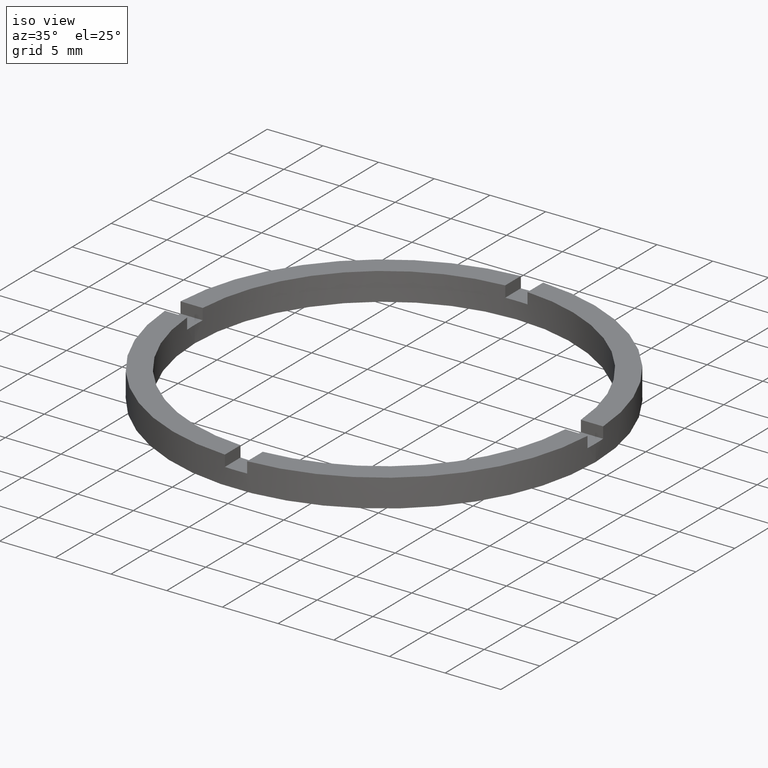
[diagram: clean part render]
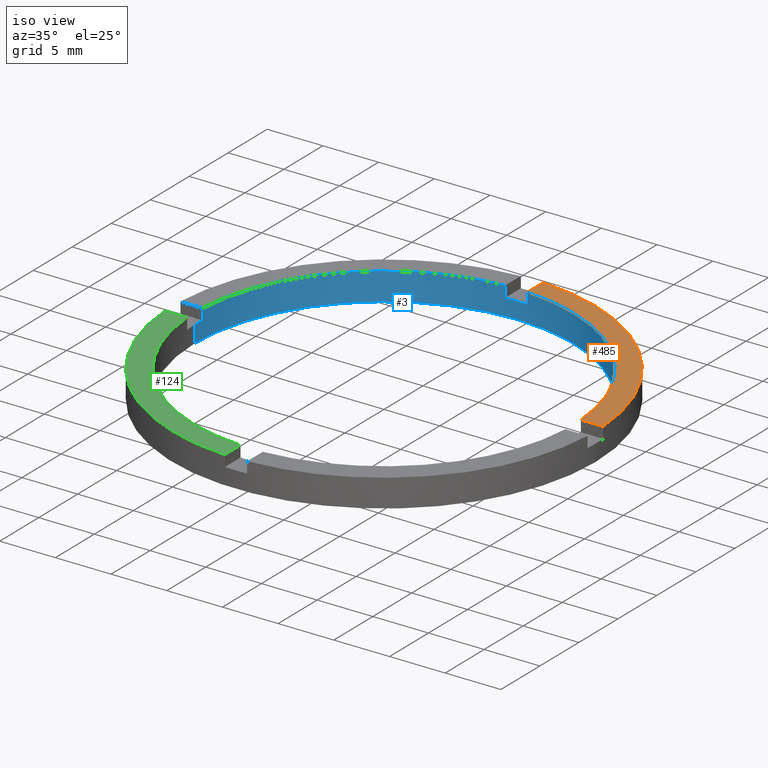
[diagram: same view with three faces highlighted in distinct colors, each labeled with its STEP entity id]
A machine part, iso view with three faces highlighted in distinct colors.
Their STEP definitions:

[orange] entity #485 — the highlighted planar face has unit normal (0, 0, 1).
#8 = CARTESIAN_POINT ( 'NONE',  ( 0.9999999999999742428, 18.97366596101027270, 2.500000000000000000 ) ) ;
#32 = AXIS2_PLACEMENT_3D ( 'NONE', #257, #660, #709 ) ;
#78 = EDGE_CURVE ( 'NONE', #535, #570, #640, .T. ) ;
#94 = EDGE_CURVE ( 'NONE', #462, #570, #99, .T. ) ;
#99 = CIRCLE ( 'NONE', #32, 19.00000000000000000 ) ;
#137 = EDGE_CURVE ( 'NONE', #298, #535, #620, .T. ) ;
#141 = DIRECTION ( 'NONE',  ( 0.000000000000000000, 1.000000000000000000, 0.000000000000000000 ) ) ;
#176 = PLANE ( 'NONE',  #703 ) ;
#197 = ORIENTED_EDGE ( 'NONE', *, *, #78, .F. ) ;
#245 = CARTESIAN_POINT ( 'NONE',  ( 16.97056274847714974, 0.9999999999998412381, 2.500000000000000000 ) ) ;
#257 = CARTESIAN_POINT ( 'NONE',  ( 0.000000000000000000, 0.000000000000000000, 2.500000000000000000 ) ) ;
#298 = VERTEX_POINT ( 'NONE', #245 ) ;
#343 = DIRECTION ( 'NONE',  ( 1.000000000000000000, 0.000000000000000000, -0.000000000000000000 ) ) ;
#368 = CARTESIAN_POINT ( 'NONE',  ( 0.000000000000000000, 0.000000000000000000, 2.500000000000000000 ) ) ;
#374 = EDGE_CURVE ( 'NONE', #462, #298, #382, .T. ) ;
#382 = LINE ( 'NONE', #650, #389 ) ;
#389 = VECTOR ( 'NONE', #661, 1000.000000000000000 ) ;
#421 = CARTESIAN_POINT ( 'NONE',  ( 0.000000000000000000, 0.000000000000000000, 2.500000000000000000 ) ) ;
#450 = ORIENTED_EDGE ( 'NONE', *, *, #374, .F. ) ;
#462 = VERTEX_POINT ( 'NONE', #734 ) ;
#480 = DIRECTION ( 'NONE',  ( 1.000000000000000000, 0.000000000000000000, 0.000000000000000000 ) ) ;
#485 = ADVANCED_FACE ( 'NONE', ( #602 ), #176, .T. ) ;
#495 = ORIENTED_EDGE ( 'NONE', *, *, #94, .T. ) ;
#496 = DIRECTION ( 'NONE',  ( 0.000000000000000000, 0.000000000000000000, 1.000000000000000000 ) ) ;
#508 = CARTESIAN_POINT ( 'NONE',  ( 0.9999999999999742428, 16.97056274847713908, 2.500000000000000000 ) ) ;
#516 = CARTESIAN_POINT ( 'NONE',  ( 0.9999999999999746869, 9.000000000000000000, 2.500000000000000000 ) ) ;
#535 = VERTEX_POINT ( 'NONE', #508 ) ;
#570 = VERTEX_POINT ( 'NONE', #8 ) ;
#602 = FACE_OUTER_BOUND ( 'NONE', #748, .T. ) ;
#603 = DIRECTION ( 'NONE',  ( 0.000000000000000000, 0.000000000000000000, 1.000000000000000000 ) ) ;
#620 = CIRCLE ( 'NONE', #762, 17.00000000000000000 ) ;
#623 = VECTOR ( 'NONE', #141, 1000.000000000000000 ) ;
#640 = LINE ( 'NONE', #516, #623 ) ;
#650 = CARTESIAN_POINT ( 'NONE',  ( 8.999999999999994671, 0.9999999999998411271, 2.500000000000000000 ) ) ;
#660 = DIRECTION ( 'NONE',  ( 0.000000000000000000, 0.000000000000000000, 1.000000000000000000 ) ) ;
#661 = DIRECTION ( 'NONE',  ( -1.000000000000000000, -4.336808689942017120E-17, -0.000000000000000000 ) ) ;
#703 = AXIS2_PLACEMENT_3D ( 'NONE', #368, #496, #343 ) ;
#709 = DIRECTION ( 'NONE',  ( 1.000000000000000000, 0.000000000000000000, 0.000000000000000000 ) ) ;
#734 = CARTESIAN_POINT ( 'NONE',  ( 18.97366596101028335, 0.9999999999998414602, 2.500000000000000000 ) ) ;
#748 = EDGE_LOOP ( 'NONE', ( #197, #755, #450, #495 ) ) ;
#755 = ORIENTED_EDGE ( 'NONE', *, *, #137, .F. ) ;
#762 = AXIS2_PLACEMENT_3D ( 'NONE', #421, #603, #480 ) ;

[blue] entity #3 — the highlighted cylindrical surface (partial cylindrical patch) has radius 17 mm, axis along (-0, -0, -1).
#3 = ADVANCED_FACE ( 'NONE', ( #130 ), #132, .F. ) ;
#4 = DIRECTION ( 'NONE',  ( -0.000000000000000000, -0.000000000000000000, -1.000000000000000000 ) ) ;
#6 = CARTESIAN_POINT ( 'NONE',  ( -1.000000000000024869, 16.97056274847713553, 1.500000000000000000 ) ) ;
#10 = CARTESIAN_POINT ( 'NONE',  ( -1.000000000000024869, 16.97056274847713553, 2.500000000000000000 ) ) ;
#20 = VERTEX_POINT ( 'NONE', #400 ) ;
#30 = VERTEX_POINT ( 'NONE', #10 ) ;
#39 = CARTESIAN_POINT ( 'NONE',  ( -16.97056274847714263, 0.9999999999999759082, 1.500000000000000000 ) ) ;
#40 = DIRECTION ( 'NONE',  ( 0.000000000000000000, 0.000000000000000000, 1.000000000000000000 ) ) ;
#63 = VECTOR ( 'NONE', #670, 1000.000000000000000 ) ;
#70 = CARTESIAN_POINT ( 'NONE',  ( -17.00000000000000000, 0.000000000000000000, 1.500000000000000000 ) ) ;
#81 = CIRCLE ( 'NONE', #457, 17.00000000000000000 ) ;
#85 = CARTESIAN_POINT ( 'NONE',  ( 17.00000000000000000, 2.081899558550500280E-15, 1.500000000000000000 ) ) ;
#104 = AXIS2_PLACEMENT_3D ( 'NONE', #378, #138, #188 ) ;
#116 = LINE ( 'NONE', #364, #631 ) ;
#130 = FACE_OUTER_BOUND ( 'NONE', #281, .T. ) ;
#132 = CYLINDRICAL_SURFACE ( 'NONE', #566, 17.00000000000000000 ) ;
#137 = EDGE_CURVE ( 'NONE', #298, #535, #620, .T. ) ;
#138 = DIRECTION ( 'NONE',  ( 0.000000000000000000, -0.000000000000000000, 1.000000000000000000 ) ) ;
#154 = DIRECTION ( 'NONE',  ( 1.000000000000000000, 0.000000000000000000, 0.000000000000000000 ) ) ;
#161 = CARTESIAN_POINT ( 'NONE',  ( 0.9999999999999746869, 16.97056274847714263, 2.500000000000000000 ) ) ;
#174 = VERTEX_POINT ( 'NONE', #6 ) ;
#188 = DIRECTION ( 'NONE',  ( 1.000000000000000000, 0.000000000000000000, 0.000000000000000000 ) ) ;
#192 = EDGE_CURVE ( 'NONE', #479, #449, #629, .T. ) ;
#200 = VERTEX_POINT ( 'NONE', #372 ) ;
#203 = EDGE_CURVE ( 'NONE', #530, #174, #639, .T. ) ;
#205 = DIRECTION ( 'NONE',  ( -0.000000000000000000, -0.000000000000000000, -1.000000000000000000 ) ) ;
#207 = ORIENTED_EDGE ( 'NONE', *, *, #505, .T. ) ;
#214 = ORIENTED_EDGE ( 'NONE', *, *, #733, .F. ) ;
#223 = CARTESIAN_POINT ( 'NONE',  ( 0.000000000000000000, 0.000000000000000000, 1.500000000000000000 ) ) ;
#245 = CARTESIAN_POINT ( 'NONE',  ( 16.97056274847714974, 0.9999999999998412381, 2.500000000000000000 ) ) ;
#255 = AXIS2_PLACEMENT_3D ( 'NONE', #347, #284, #767 ) ;
#258 = EDGE_CURVE ( 'NONE', #530, #535, #632, .T. ) ;
#264 = CIRCLE ( 'NONE', #469, 17.00000000000000000 ) ;
#275 = ORIENTED_EDGE ( 'NONE', *, *, #192, .T. ) ;
#276 = ORIENTED_EDGE ( 'NONE', *, *, #396, .T. ) ;
#280 = DIRECTION ( 'NONE',  ( 1.000000000000000000, 0.000000000000000000, 0.000000000000000000 ) ) ;
#281 = EDGE_LOOP ( 'NONE', ( #214, #276, #571, #659, #458, #741, #300, #562, #657, #207, #275, #310 ) ) ;
#283 = DIRECTION ( 'NONE',  ( 0.000000000000000000, 0.000000000000000000, 1.000000000000000000 ) ) ;
#284 = DIRECTION ( 'NONE',  ( 0.000000000000000000, 0.000000000000000000, 1.000000000000000000 ) ) ;
#293 = CIRCLE ( 'NONE', #656, 17.00000000000000000 ) ;
#298 = VERTEX_POINT ( 'NONE', #245 ) ;
#300 = ORIENTED_EDGE ( 'NONE', *, *, #349, .F. ) ;
#310 = ORIENTED_EDGE ( 'NONE', *, *, #503, .F. ) ;
#312 = CIRCLE ( 'NONE', #255, 17.00000000000000000 ) ;
#322 = EDGE_CURVE ( 'NONE', #298, #742, #116, .T. ) ;
#323 = LINE ( 'NONE', #425, #63 ) ;
#330 = VECTOR ( 'NONE', #714, 1000.000000000000000 ) ;
#347 = CARTESIAN_POINT ( 'NONE',  ( 0.000000000000000000, 0.000000000000000000, 2.500000000000000000 ) ) ;
#349 = EDGE_CURVE ( 'NONE', #30, #174, #371, .T. ) ;
#351 = CARTESIAN_POINT ( 'NONE',  ( 16.97056274847714974, 0.9999999999998412381, 1.500000000000000000 ) ) ;
#360 = VECTOR ( 'NONE', #4, 1000.000000000000000 ) ;
#364 = CARTESIAN_POINT ( 'NONE',  ( 16.97056274847714974, 0.9999999999998412381, 2.500000000000000000 ) ) ;
#371 = LINE ( 'NONE', #673, #376 ) ;
#372 = CARTESIAN_POINT ( 'NONE',  ( -16.97056274847714263, 0.9999999999999759082, 2.500000000000000000 ) ) ;
#376 = VECTOR ( 'NONE', #729, 1000.000000000000000 ) ;
#378 = CARTESIAN_POINT ( 'NONE',  ( 0.000000000000000000, 0.000000000000000000, 1.500000000000000000 ) ) ;
#393 = DIRECTION ( 'NONE',  ( -1.000000000000000000, 0.000000000000000000, 0.000000000000000000 ) ) ;
#394 = VERTEX_POINT ( 'NONE', #39 ) ;
#396 = EDGE_CURVE ( 'NONE', #539, #742, #81, .T. ) ;
#400 = CARTESIAN_POINT ( 'NONE',  ( 17.00000000000000000, 2.081899558550500280E-15, 0.000000000000000000 ) ) ;
#419 = CARTESIAN_POINT ( 'NONE',  ( -16.97056274847714263, 0.9999999999999759082, 2.500000000000000000 ) ) ;
#421 = CARTESIAN_POINT ( 'NONE',  ( 0.000000000000000000, 0.000000000000000000, 2.500000000000000000 ) ) ;
#425 = CARTESIAN_POINT ( 'NONE',  ( 17.00000000000000000, 2.081899558550500280E-15, 2.500000000000000000 ) ) ;
#437 = CARTESIAN_POINT ( 'NONE',  ( 0.000000000000000000, 0.000000000000000000, 2.500000000000000000 ) ) ;
#449 = VERTEX_POINT ( 'NONE', #472 ) ;
#451 = DIRECTION ( 'NONE',  ( 1.000000000000000000, 0.000000000000000000, 0.000000000000000000 ) ) ;
#457 = AXIS2_PLACEMENT_3D ( 'NONE', #223, #718, #280 ) ;
#458 = ORIENTED_EDGE ( 'NONE', *, *, #258, .F. ) ;
#460 = CARTESIAN_POINT ( 'NONE',  ( 0.000000000000000000, 0.000000000000000000, 0.000000000000000000 ) ) ;
#469 = AXIS2_PLACEMENT_3D ( 'NONE', #641, #700, #154 ) ;
#472 = CARTESIAN_POINT ( 'NONE',  ( -17.00000000000000000, 0.000000000000000000, 0.000000000000000000 ) ) ;
#479 = VERTEX_POINT ( 'NONE', #70 ) ;
#480 = DIRECTION ( 'NONE',  ( 1.000000000000000000, 0.000000000000000000, 0.000000000000000000 ) ) ;
#503 = EDGE_CURVE ( 'NONE', #20, #449, #293, .T. ) ;
#505 = EDGE_CURVE ( 'NONE', #394, #479, #264, .T. ) ;
#508 = CARTESIAN_POINT ( 'NONE',  ( 0.9999999999999742428, 16.97056274847713908, 2.500000000000000000 ) ) ;
#530 = VERTEX_POINT ( 'NONE', #616 ) ;
#535 = VERTEX_POINT ( 'NONE', #508 ) ;
#536 = DIRECTION ( 'NONE',  ( -0.000000000000000000, -0.000000000000000000, -1.000000000000000000 ) ) ;
#539 = VERTEX_POINT ( 'NONE', #85 ) ;
#562 = ORIENTED_EDGE ( 'NONE', *, *, #775, .T. ) ;
#566 = AXIS2_PLACEMENT_3D ( 'NONE', #437, #205, #393 ) ;
#571 = ORIENTED_EDGE ( 'NONE', *, *, #322, .F. ) ;
#584 = LINE ( 'NONE', #419, #330 ) ;
#603 = DIRECTION ( 'NONE',  ( 0.000000000000000000, 0.000000000000000000, 1.000000000000000000 ) ) ;
#609 = CARTESIAN_POINT ( 'NONE',  ( -17.00000000000000000, 0.000000000000000000, 2.500000000000000000 ) ) ;
#616 = CARTESIAN_POINT ( 'NONE',  ( 0.9999999999999742428, 16.97056274847713908, 1.500000000000000000 ) ) ;
#620 = CIRCLE ( 'NONE', #762, 17.00000000000000000 ) ;
#627 = VECTOR ( 'NONE', #283, 1000.000000000000000 ) ;
#629 = LINE ( 'NONE', #609, #360 ) ;
#631 = VECTOR ( 'NONE', #536, 1000.000000000000000 ) ;
#632 = LINE ( 'NONE', #161, #627 ) ;
#639 = CIRCLE ( 'NONE', #104, 17.00000000000000000 ) ;
#641 = CARTESIAN_POINT ( 'NONE',  ( 0.000000000000000000, 0.000000000000000000, 1.500000000000000000 ) ) ;
#656 = AXIS2_PLACEMENT_3D ( 'NONE', #460, #40, #451 ) ;
#657 = ORIENTED_EDGE ( 'NONE', *, *, #720, .F. ) ;
#659 = ORIENTED_EDGE ( 'NONE', *, *, #137, .T. ) ;
#670 = DIRECTION ( 'NONE',  ( -0.000000000000000000, -0.000000000000000000, -1.000000000000000000 ) ) ;
#673 = CARTESIAN_POINT ( 'NONE',  ( -1.000000000000025313, 16.97056274847713908, 2.500000000000000000 ) ) ;
#700 = DIRECTION ( 'NONE',  ( 0.000000000000000000, 0.000000000000000000, 1.000000000000000000 ) ) ;
#714 = DIRECTION ( 'NONE',  ( 0.000000000000000000, 0.000000000000000000, 1.000000000000000000 ) ) ;
#718 = DIRECTION ( 'NONE',  ( 0.000000000000000000, 0.000000000000000000, 1.000000000000000000 ) ) ;
#720 = EDGE_CURVE ( 'NONE', #394, #200, #584, .T. ) ;
#729 = DIRECTION ( 'NONE',  ( -0.000000000000000000, -0.000000000000000000, -1.000000000000000000 ) ) ;
#733 = EDGE_CURVE ( 'NONE', #539, #20, #323, .T. ) ;
#741 = ORIENTED_EDGE ( 'NONE', *, *, #203, .T. ) ;
#742 = VERTEX_POINT ( 'NONE', #351 ) ;
#762 = AXIS2_PLACEMENT_3D ( 'NONE', #421, #603, #480 ) ;
#767 = DIRECTION ( 'NONE',  ( 1.000000000000000000, 0.000000000000000000, 0.000000000000000000 ) ) ;
#775 = EDGE_CURVE ( 'NONE', #30, #200, #312, .T. ) ;

[green] entity #124 — the highlighted planar face has unit normal (0, 0, 1).
#25 = ORIENTED_EDGE ( 'NONE', *, *, #29, .F. ) ;
#29 = EDGE_CURVE ( 'NONE', #526, #740, #384, .T. ) ;
#31 = CARTESIAN_POINT ( 'NONE',  ( -1.000000000000161648, -18.97366596101026204, 2.500000000000000000 ) ) ;
#82 = VECTOR ( 'NONE', #172, 1000.000000000000000 ) ;
#87 = CARTESIAN_POINT ( 'NONE',  ( -1.000000000000161871, -16.97056274847712842, 2.500000000000000000 ) ) ;
#110 = VECTOR ( 'NONE', #756, 1000.000000000000000 ) ;
#124 = ADVANCED_FACE ( 'NONE', ( #362 ), #489, .T. ) ;
#136 = DIRECTION ( 'NONE',  ( 0.000000000000000000, 0.000000000000000000, 1.000000000000000000 ) ) ;
#172 = DIRECTION ( 'NONE',  ( 1.301042606982605074E-16, -1.000000000000000000, 0.000000000000000000 ) ) ;
#209 = AXIS2_PLACEMENT_3D ( 'NONE', #263, #248, #498 ) ;
#216 = ORIENTED_EDGE ( 'NONE', *, *, #573, .F. ) ;
#230 = ORIENTED_EDGE ( 'NONE', *, *, #662, .T. ) ;
#248 = DIRECTION ( 'NONE',  ( 0.000000000000000000, 0.000000000000000000, 1.000000000000000000 ) ) ;
#263 = CARTESIAN_POINT ( 'NONE',  ( 0.000000000000000000, 0.000000000000000000, 2.500000000000000000 ) ) ;
#285 = AXIS2_PLACEMENT_3D ( 'NONE', #617, #136, #353 ) ;
#331 = CARTESIAN_POINT ( 'NONE',  ( -18.97366596101027625, -1.000000000000024203, 2.500000000000000000 ) ) ;
#346 = CARTESIAN_POINT ( 'NONE',  ( -1.000000000000163203, -9.000000000000179412, 2.500000000000000000 ) ) ;
#353 = DIRECTION ( 'NONE',  ( 1.000000000000000000, 0.000000000000000000, -0.000000000000000000 ) ) ;
#362 = FACE_OUTER_BOUND ( 'NONE', #486, .T. ) ;
#384 = LINE ( 'NONE', #688, #110 ) ;
#391 = CARTESIAN_POINT ( 'NONE',  ( 0.000000000000000000, 0.000000000000000000, 2.500000000000000000 ) ) ;
#397 = DIRECTION ( 'NONE',  ( 0.000000000000000000, 0.000000000000000000, 1.000000000000000000 ) ) ;
#403 = EDGE_CURVE ( 'NONE', #559, #578, #605, .T. ) ;
#486 = EDGE_LOOP ( 'NONE', ( #550, #216, #25, #230 ) ) ;
#489 = PLANE ( 'NONE',  #285 ) ;
#498 = DIRECTION ( 'NONE',  ( 1.000000000000000000, 0.000000000000000000, 0.000000000000000000 ) ) ;
#526 = VERTEX_POINT ( 'NONE', #331 ) ;
#549 = CIRCLE ( 'NONE', #681, 17.00000000000000000 ) ;
#550 = ORIENTED_EDGE ( 'NONE', *, *, #403, .F. ) ;
#556 = CIRCLE ( 'NONE', #209, 19.00000000000000000 ) ;
#559 = VERTEX_POINT ( 'NONE', #87 ) ;
#573 = EDGE_CURVE ( 'NONE', #740, #559, #549, .T. ) ;
#578 = VERTEX_POINT ( 'NONE', #31 ) ;
#601 = CARTESIAN_POINT ( 'NONE',  ( -16.97056274847713908, -1.000000000000023981, 2.500000000000000000 ) ) ;
#605 = LINE ( 'NONE', #346, #82 ) ;
#617 = CARTESIAN_POINT ( 'NONE',  ( 0.000000000000000000, 0.000000000000000000, 2.500000000000000000 ) ) ;
#662 = EDGE_CURVE ( 'NONE', #526, #578, #556, .T. ) ;
#681 = AXIS2_PLACEMENT_3D ( 'NONE', #391, #397, #766 ) ;
#688 = CARTESIAN_POINT ( 'NONE',  ( -9.000000000000184741, -1.000000000000022649, 2.500000000000000000 ) ) ;
#740 = VERTEX_POINT ( 'NONE', #601 ) ;
#756 = DIRECTION ( 'NONE',  ( 1.000000000000000000, 1.734723475976806848E-16, -0.000000000000000000 ) ) ;
#766 = DIRECTION ( 'NONE',  ( 1.000000000000000000, 0.000000000000000000, 0.000000000000000000 ) ) ;